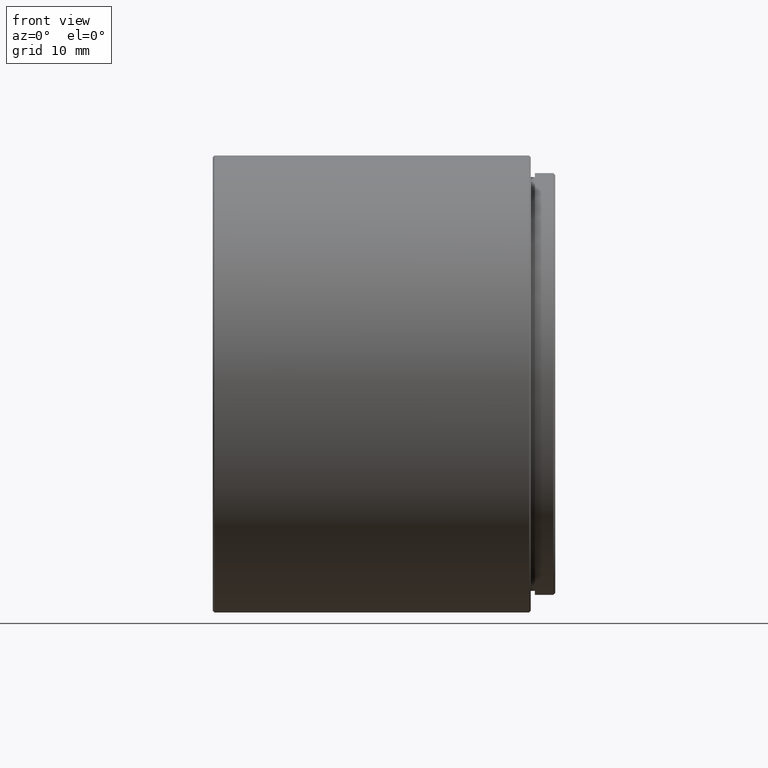
[diagram: clean part render]
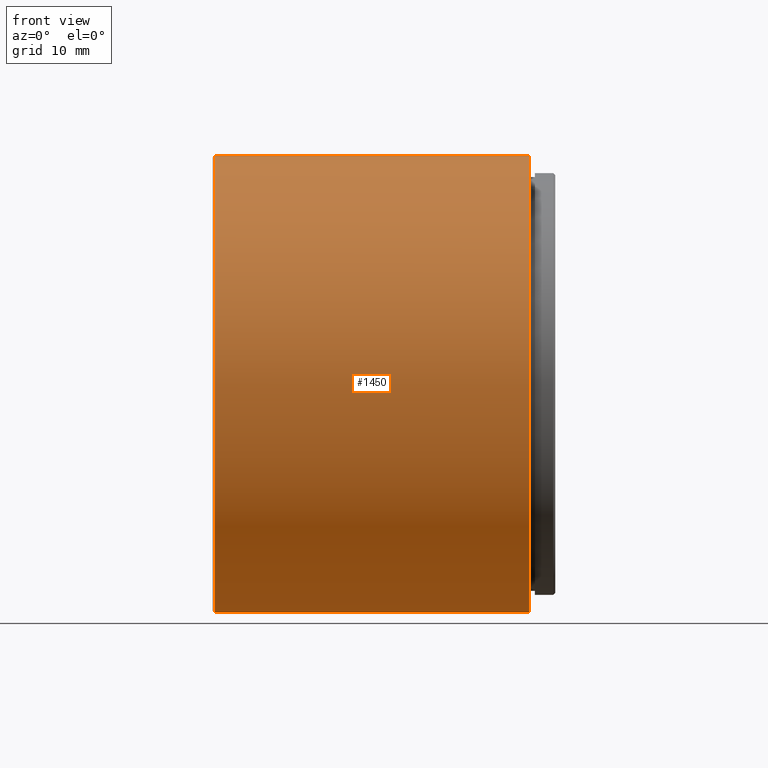
[diagram: same view with one face highlighted and labeled with its STEP entity id]
A machine part, front view. The second image highlights one B-rep face of the part: STEP entity #1450.
In plain terms, the highlighted cylindrical surface (partial cylindrical patch) has radius 27.95 mm, axis along (-1, -0, -0).
Its self-contained STEP definition (entity closure, byte-faithful):
#7 = CYLINDRICAL_SURFACE ( 'NONE', #1262, 27.94999999999999929 ) ;
#43 = DIRECTION ( 'NONE',  ( 0.000000000000000000, 0.000000000000000000, -1.000000000000000000 ) ) ;
#119 = DIRECTION ( 'NONE',  ( -1.000000000000000000, -0.000000000000000000, -0.000000000000000000 ) ) ;
#124 = VECTOR ( 'NONE', #392, 1000.000000000000000 ) ;
#187 = LINE ( 'NONE', #1360, #124 ) ;
#202 = AXIS2_PLACEMENT_3D ( 'NONE', #285, #1379, #43 ) ;
#233 = EDGE_CURVE ( 'NONE', #1174, #1497, #1338, .T. ) ;
#244 = ORIENTED_EDGE ( 'NONE', *, *, #398, .T. ) ;
#253 = DIRECTION ( 'NONE',  ( -1.000000000000000000, -0.000000000000000000, -0.000000000000000000 ) ) ;
#285 = CARTESIAN_POINT ( 'NONE',  ( 3.325999999999963208, -20.10857142857141966, 0.000000000000000000 ) ) ;
#299 = CARTESIAN_POINT ( 'NONE',  ( -35.17399999999999949, -20.10857142857141966, 0.000000000000000000 ) ) ;
#392 = DIRECTION ( 'NONE',  ( -1.000000000000000000, -0.000000000000000000, -0.000000000000000000 ) ) ;
#398 = EDGE_CURVE ( 'NONE', #1497, #717, #1506, .T. ) ;
#476 = CARTESIAN_POINT ( 'NONE',  ( -35.17399999999999949, -20.10857142857141966, -27.94999999999999929 ) ) ;
#601 = FACE_OUTER_BOUND ( 'NONE', #809, .T. ) ;
#717 = VERTEX_POINT ( 'NONE', #476 ) ;
#746 = DIRECTION ( 'NONE',  ( 0.000000000000000000, 0.000000000000000000, 1.000000000000000000 ) ) ;
#765 = CIRCLE ( 'NONE', #202, 27.94999999999999929 ) ;
#776 = CARTESIAN_POINT ( 'NONE',  ( 3.325999999999963208, -20.10857142857141966, 27.94999999999999929 ) ) ;
#809 = EDGE_LOOP ( 'NONE', ( #1006, #848, #1063, #244 ) ) ;
#848 = ORIENTED_EDGE ( 'NONE', *, *, #1116, .T. ) ;
#867 = CARTESIAN_POINT ( 'NONE',  ( 3.525999999999982926, -20.10857142857141966, 0.000000000000000000 ) ) ;
#929 = EDGE_CURVE ( 'NONE', #1508, #717, #187, .T. ) ;
#1006 = ORIENTED_EDGE ( 'NONE', *, *, #929, .F. ) ;
#1021 = VECTOR ( 'NONE', #253, 1000.000000000000000 ) ;
#1038 = AXIS2_PLACEMENT_3D ( 'NONE', #299, #1272, #1165 ) ;
#1063 = ORIENTED_EDGE ( 'NONE', *, *, #233, .T. ) ;
#1116 = EDGE_CURVE ( 'NONE', #1508, #1174, #765, .T. ) ;
#1165 = DIRECTION ( 'NONE',  ( 0.000000000000000000, 0.000000000000000000, 1.000000000000000000 ) ) ;
#1174 = VERTEX_POINT ( 'NONE', #776 ) ;
#1236 = CARTESIAN_POINT ( 'NONE',  ( 3.325999999999963208, -20.10857142857141611, -27.94999999999999929 ) ) ;
#1262 = AXIS2_PLACEMENT_3D ( 'NONE', #867, #119, #746 ) ;
#1272 = DIRECTION ( 'NONE',  ( 1.000000000000000000, 0.000000000000000000, 0.000000000000000000 ) ) ;
#1338 = LINE ( 'NONE', #1356, #1021 ) ;
#1356 = CARTESIAN_POINT ( 'NONE',  ( 3.525999999999982926, -20.10857142857141966, 27.94999999999999929 ) ) ;
#1360 = CARTESIAN_POINT ( 'NONE',  ( 3.525999999999982926, -20.10857142857141611, -27.94999999999999929 ) ) ;
#1379 = DIRECTION ( 'NONE',  ( -1.000000000000000000, 0.000000000000000000, 0.000000000000000000 ) ) ;
#1450 = ADVANCED_FACE ( 'NONE', ( #601 ), #7, .T. ) ;
#1497 = VERTEX_POINT ( 'NONE', #1570 ) ;
#1506 = CIRCLE ( 'NONE', #1038, 27.94999999999999929 ) ;
#1508 = VERTEX_POINT ( 'NONE', #1236 ) ;
#1570 = CARTESIAN_POINT ( 'NONE',  ( -35.17399999999999949, -20.10857142857141611, 27.94999999999999929 ) ) ;